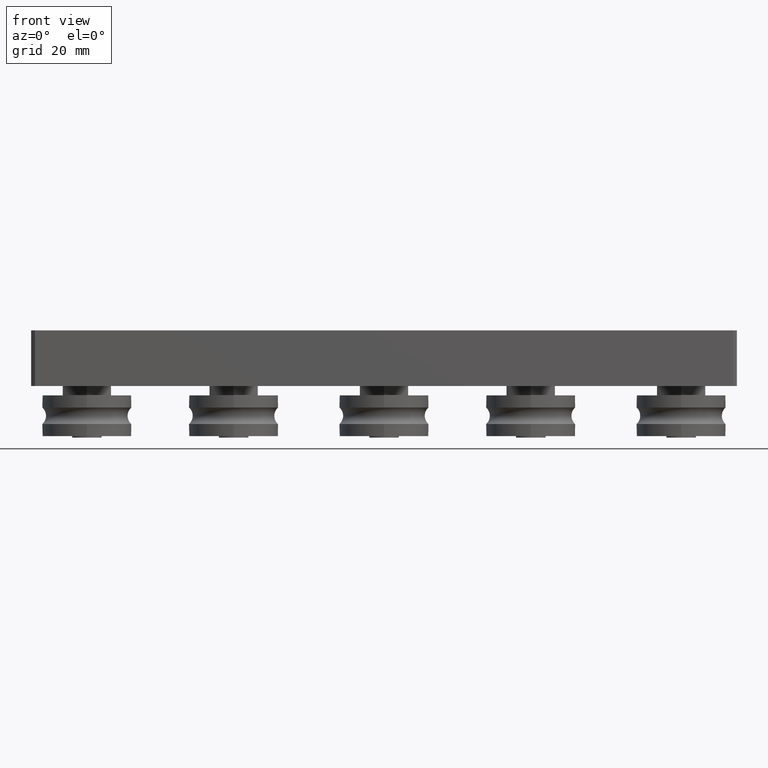
[diagram: clean part render]
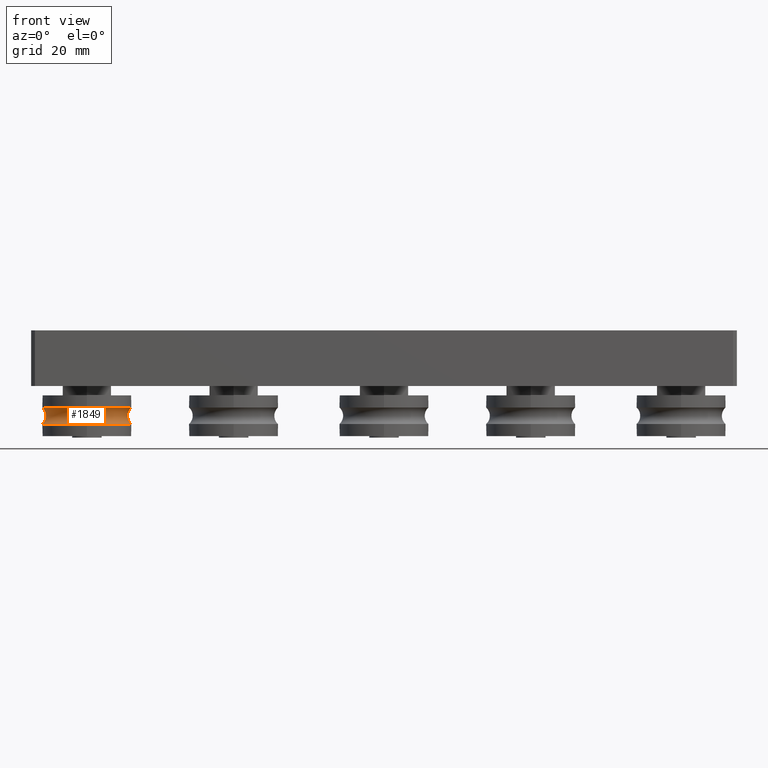
[diagram: same view with one face highlighted and labeled with its STEP entity id]
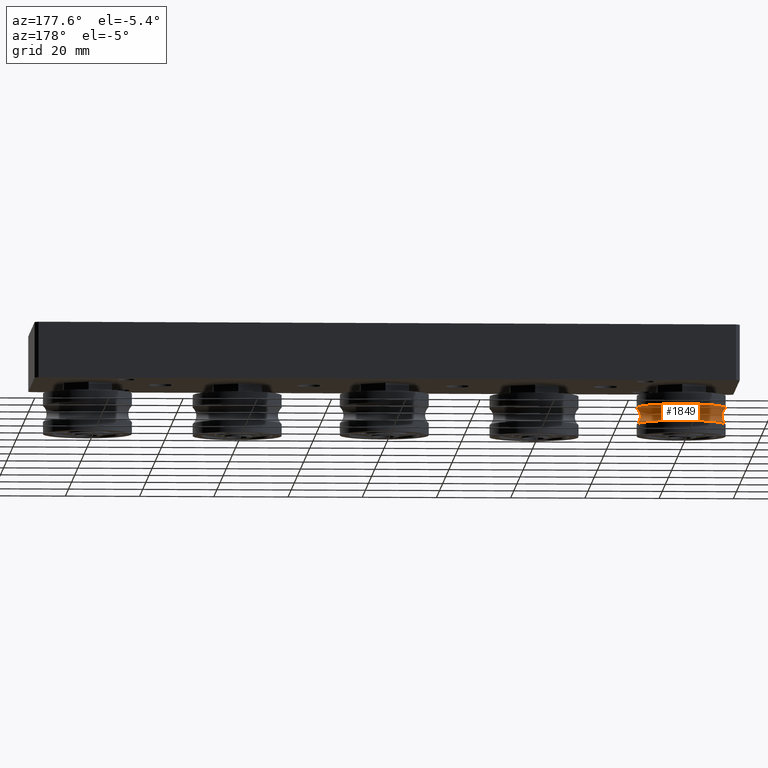
[diagram: same view with one face highlighted and labeled with its STEP entity id]
A machine part, front view. The second image highlights one B-rep face of the part: STEP entity #1849.
A second angle (auxiliary view) of the same face is appended — the face is thin or edge-on in the first view.
In plain terms, the highlighted toroidal blend (fillet) surface has major radius 14 mm and minor (blend) radius 3 mm.
Its self-contained STEP definition (entity closure, byte-faithful):
#109=TOROIDAL_SURFACE('',#2184,14.,3.);
#309=CIRCLE('',#2182,12.);
#310=CIRCLE('',#2183,12.);
#311=CIRCLE('',#2185,3.);
#312=CIRCLE('',#2186,12.);
#313=CIRCLE('',#2187,12.);
#419=FACE_OUTER_BOUND('',#573,.T.);
#573=EDGE_LOOP('',(#1576,#1577,#1578,#1579,#1580,#1581));
#976=VERTEX_POINT('',#3254);
#977=VERTEX_POINT('',#3255);
#978=VERTEX_POINT('',#3260);
#979=VERTEX_POINT('',#3262);
#1183=EDGE_CURVE('',#976,#977,#309,.T.);
#1185=EDGE_CURVE('',#977,#976,#310,.T.);
#1186=EDGE_CURVE('',#977,#978,#311,.T.);
#1187=EDGE_CURVE('',#979,#978,#312,.T.);
#1188=EDGE_CURVE('',#978,#979,#313,.T.);
#1576=ORIENTED_EDGE('',*,*,#1183,.T.);
#1577=ORIENTED_EDGE('',*,*,#1186,.T.);
#1578=ORIENTED_EDGE('',*,*,#1187,.F.);
#1579=ORIENTED_EDGE('',*,*,#1188,.F.);
#1580=ORIENTED_EDGE('',*,*,#1186,.F.);
#1581=ORIENTED_EDGE('',*,*,#1185,.T.);
#1849=ADVANCED_FACE('',(#419),#109,.F.);
#2182=AXIS2_PLACEMENT_3D('',#3256,#2660,#2661);
#2183=AXIS2_PLACEMENT_3D('',#3258,#2663,#2664);
#2184=AXIS2_PLACEMENT_3D('',#3259,#2665,#2666);
#2185=AXIS2_PLACEMENT_3D('',#3261,#2667,#2668);
#2186=AXIS2_PLACEMENT_3D('',#3263,#2669,#2670);
#2187=AXIS2_PLACEMENT_3D('',#3264,#2671,#2672);
#2660=DIRECTION('center_axis',(1.,0.,0.));
#2661=DIRECTION('ref_axis',(0.,1.,0.));
#2663=DIRECTION('center_axis',(1.,0.,0.));
#2664=DIRECTION('ref_axis',(0.,1.,0.));
#2665=DIRECTION('center_axis',(1.,0.,0.));
#2666=DIRECTION('ref_axis',(0.,0.,-1.));
#2667=DIRECTION('center_axis',(0.,-1.,-1.22464679914735E-16));
#2668=DIRECTION('ref_axis',(0.,-1.22464679914735E-16,1.));
#2669=DIRECTION('center_axis',(1.,0.,0.));
#2670=DIRECTION('ref_axis',(0.,1.,0.));
#2671=DIRECTION('center_axis',(1.,0.,0.));
#2672=DIRECTION('ref_axis',(0.,1.,0.));
#3254=CARTESIAN_POINT('',(-2.23606797749979,-12.,-1.46957615897682E-15));
#3255=CARTESIAN_POINT('',(-2.23606797749979,-1.46957615897682E-15,12.));
#3256=CARTESIAN_POINT('Origin',(-2.23606797749979,0.,0.));
#3258=CARTESIAN_POINT('Origin',(-2.23606797749979,0.,0.));
#3259=CARTESIAN_POINT('Origin',(0.,0.,0.));
#3260=CARTESIAN_POINT('',(2.23606797749979,-1.46957615897682E-15,12.));
#3261=CARTESIAN_POINT('Origin',(0.,-1.71450551880629E-15,14.));
#3262=CARTESIAN_POINT('',(2.23606797749979,-12.,-1.46957615897682E-15));
#3263=CARTESIAN_POINT('Origin',(2.23606797749979,0.,0.));
#3264=CARTESIAN_POINT('Origin',(2.23606797749979,0.,0.));